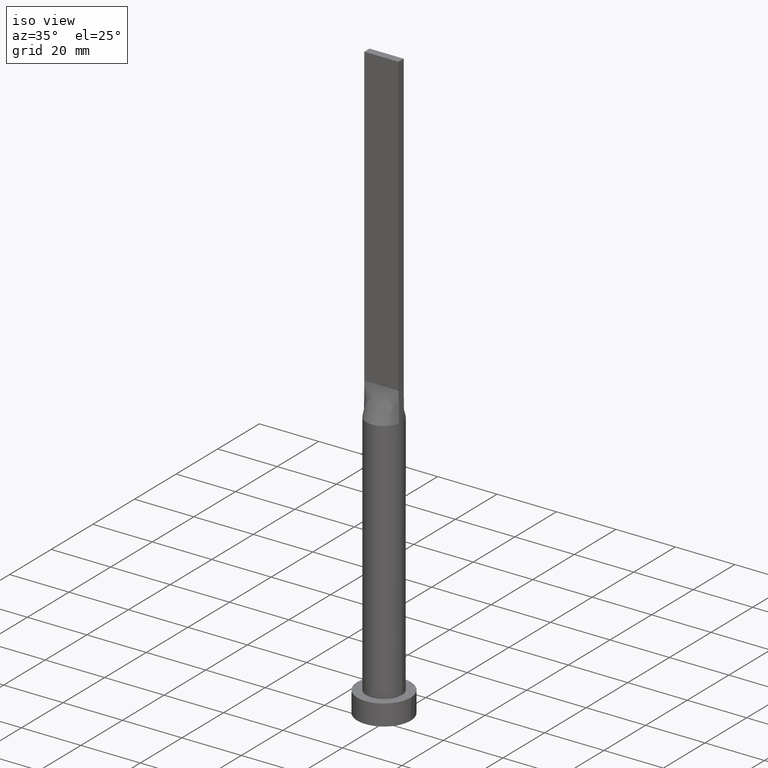
[diagram: clean part render]
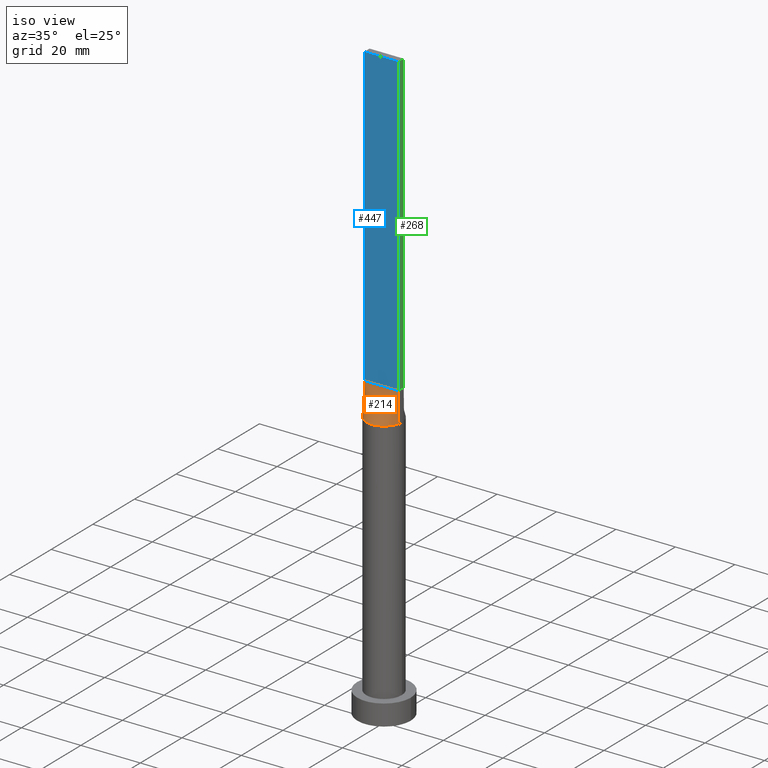
[diagram: same view with three faces highlighted in distinct colors, each labeled with its STEP entity id]
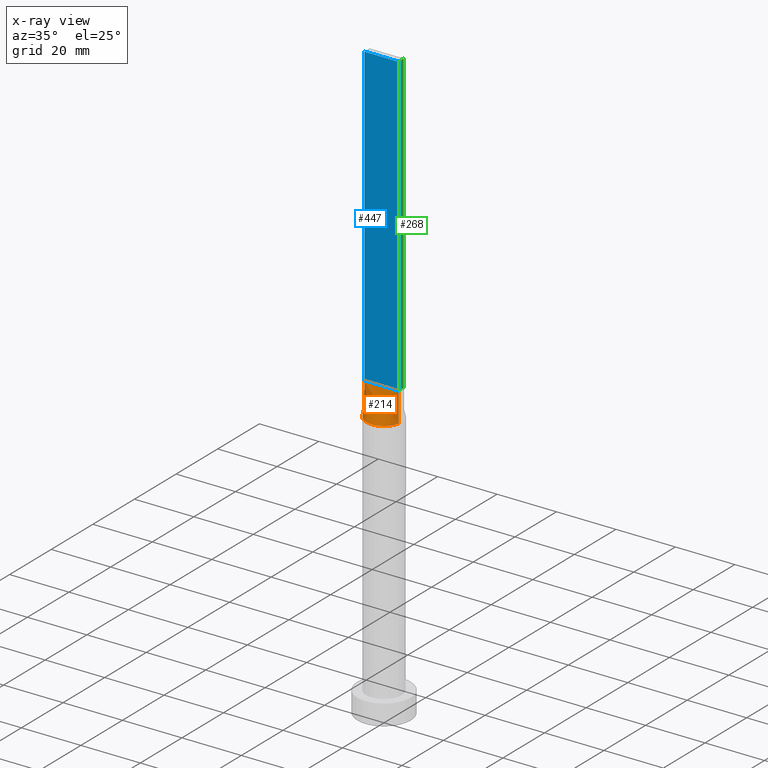
[diagram: x-ray of the same camera — body ghosted, the three highlighted faces saturated]
A machine part, iso view with three faces highlighted in distinct colors.
The next image is the same camera in x-ray (body ghosted, the three faces saturated) — at least one of them is partly hidden behind the body in this view.
Their STEP definitions:

[orange] entity #214 — the highlighted face is a freeform B-spline surface patch.
#3 = CARTESIAN_POINT ( 'NONE',  ( -5.759267569818394605, -1.752014689090954480, 90.00000000000004263 ) ) ;
#4 = CARTESIAN_POINT ( 'NONE',  ( 5.750000000000000000, -1.249999999999999778, 100.0000000000000000 ) ) ;
#10 = CARTESIAN_POINT ( 'NONE',  ( -0.9583333333333269310, -1.249999999999999334, 100.0000000000000000 ) ) ;
#15 = CARTESIAN_POINT ( 'NONE',  ( 3.037647739454303331, -5.231880992812857123, 90.00000000000007105 ) ) ;
#34 = CARTESIAN_POINT ( 'NONE',  ( -1.197916666666660079, -1.249999999999999334, 100.0000000000000000 ) ) ;
#40 = CARTESIAN_POINT ( 'NONE',  ( -3.660567483996338911, -4.804269179125217448, 90.00000000000002842 ) ) ;
#62 = CARTESIAN_POINT ( 'NONE',  ( 0.9583333333333390325, -1.249999999999999556, 100.0000000000000000 ) ) ;
#63 = VERTEX_POINT ( 'NONE', #352 ) ;
#78 = LINE ( 'NONE', #224, #327 ) ;
#93 = CIRCLE ( 'NONE', #442, 6.000000000000000888 ) ;
#95 = CARTESIAN_POINT ( 'NONE',  ( -1.966519853258819506, -5.681792876789066860, 90.00000000000004263 ) ) ;
#98 = VERTEX_POINT ( 'NONE', #354 ) ;
#99 = B_SPLINE_SURFACE_WITH_KNOTS ( 'NONE', 3, 1, ( 
 ( #371, #229 ),
 ( #3, #220 ),
 ( #184, #407 ),
 ( #596, #363 ),
 ( #555, #131 ),
 ( #40, #365 ),
 ( #135, #324 ),
 ( #95, #34 ),
 ( #550, #10 ),
 ( #287, #380 ),
 ( #432, #512 ),
 ( #195, #232 ),
 ( #142, #342 ),
 ( #388, #62 ),
 ( #332, #383 ),
 ( #15, #377 ),
 ( #472, #234 ),
 ( #526, #199 ),
 ( #336, #567 ),
 ( #561, #328 ),
 ( #149, #570 ),
 ( #152, #4 ) ),
 .UNSPECIFIED., .F., .F., .F.,
 ( 4, 2, 2, 2, 2, 2, 2, 2, 2, 2, 4 ),
 ( 2, 2 ),
 ( 0.000000000000000000, 0.1250000000000000278, 0.2500000000000000555, 0.3750000000000001110, 0.4375000000000000555, 0.5000000000000000000, 0.5625000000000000000, 0.6250000000000000000, 0.7499999999999998890, 0.8750000000000000000, 1.000000000000000000 ),
 ( 0.000000000000000000, 1.000000000000000000 ),
 .UNSPECIFIED. ) ;
#131 = CARTESIAN_POINT ( 'NONE',  ( -3.354166666666663410, -1.249999999999999112, 100.0000000000000000 ) ) ;
#134 = LINE ( 'NONE', #409, #385 ) ;
#135 = CARTESIAN_POINT ( 'NONE',  ( -3.037647739454305551, -5.231880992812856235, 90.00000000000002842 ) ) ;
#138 = CARTESIAN_POINT ( 'NONE',  ( 5.750000000000000000, -1.249999999999999778, 100.0000000000000000 ) ) ;
#142 = CARTESIAN_POINT ( 'NONE',  ( 0.8058840496048923496, -5.959001506938069070, 90.00000000000001421 ) ) ;
#149 = CARTESIAN_POINT ( 'NONE',  ( 5.759267569818393717, -1.752014689090956256, 90.00000000000002842 ) ) ;
#152 = CARTESIAN_POINT ( 'NONE',  ( 5.863058183536805856, -1.274577865986266101, 90.00000000000001421 ) ) ;
#184 = CARTESIAN_POINT ( 'NONE',  ( -5.586898165904734093, -2.266054396544145533, 90.00000000000002842 ) ) ;
#185 = EDGE_CURVE ( 'NONE', #98, #226, #134, .T. ) ;
#195 = CARTESIAN_POINT ( 'NONE',  ( 0.4029827085191214908, -6.000000000000000888, 90.00000000000002842 ) ) ;
#199 = CARTESIAN_POINT ( 'NONE',  ( 3.354166666666669183, -1.249999999999999778, 100.0000000000000284 ) ) ;
#200 = ORIENTED_EDGE ( 'NONE', *, *, #403, .F. ) ;
#214 = ADVANCED_FACE ( 'NONE', ( #506 ), #99, .T. ) ;
#220 = CARTESIAN_POINT ( 'NONE',  ( -5.270833333333333037, -1.249999999999999112, 100.0000000000000142 ) ) ;
#224 = CARTESIAN_POINT ( 'NONE',  ( -5.806529091768402928, -1.262288932993130386, 95.00000000000000000 ) ) ;
#226 = VERTEX_POINT ( 'NONE', #138 ) ;
#229 = CARTESIAN_POINT ( 'NONE',  ( -5.750000000000000000, -1.249999999999999112, 100.0000000000000000 ) ) ;
#232 = CARTESIAN_POINT ( 'NONE',  ( 0.2395833333333390325, -1.249999999999999556, 100.0000000000000142 ) ) ;
#234 = CARTESIAN_POINT ( 'NONE',  ( 2.395833333333337478, -1.249999999999999778, 100.0000000000000142 ) ) ;
#275 = EDGE_CURVE ( 'NONE', #516, #98, #93, .T. ) ;
#280 = DIRECTION ( 'NONE',  ( 0.000000000000000000, 0.000000000000000000, 1.000000000000000000 ) ) ;
#287 = CARTESIAN_POINT ( 'NONE',  ( -0.8058840496048947921, -5.959001506938068182, 90.00000000000005684 ) ) ;
#288 = ORIENTED_EDGE ( 'NONE', *, *, #467, .T. ) ;
#317 = CARTESIAN_POINT ( 'NONE',  ( -5.750000000000000000, -1.249999999999999112, 100.0000000000000000 ) ) ;
#324 = CARTESIAN_POINT ( 'NONE',  ( -1.916666666666660523, -1.249999999999999334, 100.0000000000000000 ) ) ;
#327 = VECTOR ( 'NONE', #411, 1000.000000000000114 ) ;
#328 = CARTESIAN_POINT ( 'NONE',  ( 4.791666666666667851, -1.249999999999999778, 100.0000000000000000 ) ) ;
#332 = CARTESIAN_POINT ( 'NONE',  ( 1.966519853258817729, -5.681792876789067748, 90.00000000000001421 ) ) ;
#336 = CARTESIAN_POINT ( 'NONE',  ( 5.038190104264874236, -3.311355329404293890, 90.00000000000002842 ) ) ;
#342 = CARTESIAN_POINT ( 'NONE',  ( 0.4791666666666724028, -1.249999999999999556, 100.0000000000000142 ) ) ;
#352 = CARTESIAN_POINT ( 'NONE',  ( -5.750000000000000000, -1.249999999999999112, 100.0000000000000000 ) ) ;
#354 = CARTESIAN_POINT ( 'NONE',  ( 5.863058287509796074, -1.274577880478293901, 90.00000000000001421 ) ) ;
#363 = CARTESIAN_POINT ( 'NONE',  ( -3.833333333333330817, -1.249999999999999112, 100.0000000000000142 ) ) ;
#365 = CARTESIAN_POINT ( 'NONE',  ( -2.395833333333328152, -1.249999999999999112, 100.0000000000000000 ) ) ;
#371 = CARTESIAN_POINT ( 'NONE',  ( -5.863058183536806744, -1.274577865986261438, 90.00000000000001421 ) ) ;
#374 = CARTESIAN_POINT ( 'NONE',  ( 0.000000000000000000, 0.000000000000000000, 90.00000000000001421 ) ) ;
#377 = CARTESIAN_POINT ( 'NONE',  ( 1.916666666666671626, -1.249999999999999778, 100.0000000000000142 ) ) ;
#380 = CARTESIAN_POINT ( 'NONE',  ( -0.4791666666666606345, -1.249999999999999334, 100.0000000000000000 ) ) ;
#383 = CARTESIAN_POINT ( 'NONE',  ( 1.197916666666672292, -1.249999999999999778, 100.0000000000000142 ) ) ;
#385 = VECTOR ( 'NONE', #457, 1000.000000000000114 ) ;
#388 = CARTESIAN_POINT ( 'NONE',  ( 1.587717880441006368, -5.799853445840308375, 90.00000000000001421 ) ) ;
#403 = EDGE_CURVE ( 'NONE', #63, #226, #452, .T. ) ;
#407 = CARTESIAN_POINT ( 'NONE',  ( -4.791666666666666075, -1.249999999999999112, 100.0000000000000142 ) ) ;
#409 = CARTESIAN_POINT ( 'NONE',  ( 5.806529091768402928, -1.262288932993132828, 95.00000000000000000 ) ) ;
#411 = DIRECTION ( 'NONE',  ( -0.01130506171853812650, -0.002457622112725682973, -0.9999330755971076456 ) ) ;
#427 = ORIENTED_EDGE ( 'NONE', *, *, #185, .T. ) ;
#429 = DIRECTION ( 'NONE',  ( 1.000000000000000000, 0.000000000000000000, 0.000000000000000000 ) ) ;
#430 = ORIENTED_EDGE ( 'NONE', *, *, #275, .T. ) ;
#432 = CARTESIAN_POINT ( 'NONE',  ( -0.4029827085191233227, -6.000000000000000000, 90.00000000000004263 ) ) ;
#442 = AXIS2_PLACEMENT_3D ( 'NONE', #374, #280, #429 ) ;
#452 = LINE ( 'NONE', #317, #531 ) ;
#457 = DIRECTION ( 'NONE',  ( -0.01130506171853803803, 0.002457622112726073286, 0.9999330755971076456 ) ) ;
#458 = DIRECTION ( 'NONE',  ( 1.000000000000000000, -5.656706986880892860E-17, 0.000000000000000000 ) ) ;
#467 = EDGE_CURVE ( 'NONE', #63, #516, #78, .T. ) ;
#472 = CARTESIAN_POINT ( 'NONE',  ( 3.660567483996338023, -4.804269179125219225, 90.00000000000005684 ) ) ;
#506 = FACE_OUTER_BOUND ( 'NONE', #588, .T. ) ;
#512 = CARTESIAN_POINT ( 'NONE',  ( -0.2395833333333274584, -1.249999999999999556, 100.0000000000000142 ) ) ;
#516 = VERTEX_POINT ( 'NONE', #590 ) ;
#526 = CARTESIAN_POINT ( 'NONE',  ( 4.659826596530312948, -3.842755878357678512, 90.00000000000001421 ) ) ;
#531 = VECTOR ( 'NONE', #458, 1000.000000000000000 ) ;
#550 = CARTESIAN_POINT ( 'NONE',  ( -1.587717880441008589, -5.799853445840304822, 90.00000000000001421 ) ) ;
#555 = CARTESIAN_POINT ( 'NONE',  ( -4.659826596530313836, -3.842755878357677179, 90.00000000000002842 ) ) ;
#561 = CARTESIAN_POINT ( 'NONE',  ( 5.586898165904734093, -2.266054396544146865, 90.00000000000004263 ) ) ;
#567 = CARTESIAN_POINT ( 'NONE',  ( 3.833333333333336146, -1.249999999999999778, 100.0000000000000284 ) ) ;
#570 = CARTESIAN_POINT ( 'NONE',  ( 5.270833333333333925, -1.249999999999999778, 100.0000000000000000 ) ) ;
#588 = EDGE_LOOP ( 'NONE', ( #430, #427, #200, #288 ) ) ;
#590 = CARTESIAN_POINT ( 'NONE',  ( -5.863065408737084816, -1.274579424051652365, 90.00000000000001421 ) ) ;
#596 = CARTESIAN_POINT ( 'NONE',  ( -5.038190104264876013, -3.311355329404291670, 90.00000000000005684 ) ) ;

[blue] entity #447 — the highlighted planar face has unit normal (0, 1, -0).
#41 = DIRECTION ( 'NONE',  ( -1.000000000000000000, 5.656706986880892860E-17, 0.000000000000000000 ) ) ;
#52 = VERTEX_POINT ( 'NONE', #575 ) ;
#63 = VERTEX_POINT ( 'NONE', #352 ) ;
#64 = EDGE_CURVE ( 'NONE', #52, #527, #213, .T. ) ;
#86 = EDGE_CURVE ( 'NONE', #52, #63, #299, .T. ) ;
#122 = ORIENTED_EDGE ( 'NONE', *, *, #403, .T. ) ;
#123 = CARTESIAN_POINT ( 'NONE',  ( -5.750000000000000000, -1.249999999999999112, 200.0000000000000000 ) ) ;
#133 = CARTESIAN_POINT ( 'NONE',  ( 5.750000000000000000, -1.249999999999999778, 200.0000000000000000 ) ) ;
#138 = CARTESIAN_POINT ( 'NONE',  ( 5.750000000000000000, -1.249999999999999778, 100.0000000000000000 ) ) ;
#183 = DIRECTION ( 'NONE',  ( 5.656706986880892860E-17, 1.000000000000000000, -0.000000000000000000 ) ) ;
#213 = LINE ( 'NONE', #393, #500 ) ;
#217 = FACE_OUTER_BOUND ( 'NONE', #235, .T. ) ;
#226 = VERTEX_POINT ( 'NONE', #138 ) ;
#235 = EDGE_LOOP ( 'NONE', ( #122, #473, #333, #344 ) ) ;
#299 = LINE ( 'NONE', #123, #578 ) ;
#311 = LINE ( 'NONE', #133, #366 ) ;
#317 = CARTESIAN_POINT ( 'NONE',  ( -5.750000000000000000, -1.249999999999999112, 100.0000000000000000 ) ) ;
#333 = ORIENTED_EDGE ( 'NONE', *, *, #64, .F. ) ;
#344 = ORIENTED_EDGE ( 'NONE', *, *, #86, .T. ) ;
#352 = CARTESIAN_POINT ( 'NONE',  ( -5.750000000000000000, -1.249999999999999112, 100.0000000000000000 ) ) ;
#366 = VECTOR ( 'NONE', #503, 1000.000000000000000 ) ;
#393 = CARTESIAN_POINT ( 'NONE',  ( -5.750000000000000000, -1.249999999999999112, 200.0000000000000000 ) ) ;
#401 = DIRECTION ( 'NONE',  ( -0.000000000000000000, -0.000000000000000000, -1.000000000000000000 ) ) ;
#403 = EDGE_CURVE ( 'NONE', #63, #226, #452, .T. ) ;
#447 = ADVANCED_FACE ( 'NONE', ( #217 ), #497, .F. ) ;
#452 = LINE ( 'NONE', #317, #531 ) ;
#458 = DIRECTION ( 'NONE',  ( 1.000000000000000000, -5.656706986880892860E-17, 0.000000000000000000 ) ) ;
#473 = ORIENTED_EDGE ( 'NONE', *, *, #509, .F. ) ;
#491 = AXIS2_PLACEMENT_3D ( 'NONE', #495, #183, #41 ) ;
#495 = CARTESIAN_POINT ( 'NONE',  ( -5.750000000000000000, -1.249999999999999112, 200.0000000000000000 ) ) ;
#497 = PLANE ( 'NONE',  #491 ) ;
#499 = CARTESIAN_POINT ( 'NONE',  ( 5.750000000000000000, -1.249999999999999778, 200.0000000000000000 ) ) ;
#500 = VECTOR ( 'NONE', #584, 1000.000000000000000 ) ;
#503 = DIRECTION ( 'NONE',  ( -0.000000000000000000, -0.000000000000000000, -1.000000000000000000 ) ) ;
#509 = EDGE_CURVE ( 'NONE', #527, #226, #311, .T. ) ;
#527 = VERTEX_POINT ( 'NONE', #499 ) ;
#531 = VECTOR ( 'NONE', #458, 1000.000000000000000 ) ;
#575 = CARTESIAN_POINT ( 'NONE',  ( -5.750000000000000000, -1.249999999999999112, 200.0000000000000000 ) ) ;
#578 = VECTOR ( 'NONE', #401, 1000.000000000000000 ) ;
#584 = DIRECTION ( 'NONE',  ( 1.000000000000000000, -5.656706986880892860E-17, 0.000000000000000000 ) ) ;

[green] entity #268 — the highlighted planar face has unit normal (-1, 0, 0).
#14 = ORIENTED_EDGE ( 'NONE', *, *, #509, .T. ) ;
#48 = CARTESIAN_POINT ( 'NONE',  ( 5.750000000000000000, -1.249999999999999778, 200.0000000000000000 ) ) ;
#55 = PLANE ( 'NONE',  #357 ) ;
#69 = EDGE_LOOP ( 'NONE', ( #341, #153, #402, #14 ) ) ;
#84 = LINE ( 'NONE', #89, #523 ) ;
#89 = CARTESIAN_POINT ( 'NONE',  ( 5.750000000000000000, 1.250000000000000222, 100.0000000000000000 ) ) ;
#104 = CARTESIAN_POINT ( 'NONE',  ( 5.750000000000000000, 1.250000000000000222, 100.0000000000000000 ) ) ;
#130 = CARTESIAN_POINT ( 'NONE',  ( 5.750000000000000000, 1.250000000000000222, 200.0000000000000000 ) ) ;
#133 = CARTESIAN_POINT ( 'NONE',  ( 5.750000000000000000, -1.249999999999999778, 200.0000000000000000 ) ) ;
#138 = CARTESIAN_POINT ( 'NONE',  ( 5.750000000000000000, -1.249999999999999778, 100.0000000000000000 ) ) ;
#153 = ORIENTED_EDGE ( 'NONE', *, *, #477, .F. ) ;
#180 = DIRECTION ( 'NONE',  ( -0.000000000000000000, -0.000000000000000000, -1.000000000000000000 ) ) ;
#192 = DIRECTION ( 'NONE',  ( 0.000000000000000000, 1.000000000000000000, 0.000000000000000000 ) ) ;
#202 = CARTESIAN_POINT ( 'NONE',  ( 5.750000000000000000, -1.249999999999999778, 200.0000000000000000 ) ) ;
#203 = VECTOR ( 'NONE', #180, 1000.000000000000000 ) ;
#226 = VERTEX_POINT ( 'NONE', #138 ) ;
#240 = VERTEX_POINT ( 'NONE', #104 ) ;
#242 = DIRECTION ( 'NONE',  ( 0.000000000000000000, 0.000000000000000000, 1.000000000000000000 ) ) ;
#268 = ADVANCED_FACE ( 'NONE', ( #476 ), #55, .F. ) ;
#311 = LINE ( 'NONE', #133, #366 ) ;
#313 = EDGE_CURVE ( 'NONE', #527, #601, #469, .T. ) ;
#314 = DIRECTION ( 'NONE',  ( -0.000000000000000000, 1.000000000000000000, -0.000000000000000000 ) ) ;
#341 = ORIENTED_EDGE ( 'NONE', *, *, #563, .T. ) ;
#357 = AXIS2_PLACEMENT_3D ( 'NONE', #202, #480, #242 ) ;
#366 = VECTOR ( 'NONE', #503, 1000.000000000000000 ) ;
#402 = ORIENTED_EDGE ( 'NONE', *, *, #313, .F. ) ;
#434 = VECTOR ( 'NONE', #192, 1000.000000000000000 ) ;
#469 = LINE ( 'NONE', #48, #434 ) ;
#476 = FACE_OUTER_BOUND ( 'NONE', #69, .T. ) ;
#477 = EDGE_CURVE ( 'NONE', #601, #240, #597, .T. ) ;
#480 = DIRECTION ( 'NONE',  ( -1.000000000000000000, 0.000000000000000000, 0.000000000000000000 ) ) ;
#499 = CARTESIAN_POINT ( 'NONE',  ( 5.750000000000000000, -1.249999999999999778, 200.0000000000000000 ) ) ;
#503 = DIRECTION ( 'NONE',  ( -0.000000000000000000, -0.000000000000000000, -1.000000000000000000 ) ) ;
#509 = EDGE_CURVE ( 'NONE', #527, #226, #311, .T. ) ;
#523 = VECTOR ( 'NONE', #314, 1000.000000000000000 ) ;
#527 = VERTEX_POINT ( 'NONE', #499 ) ;
#544 = CARTESIAN_POINT ( 'NONE',  ( 5.750000000000000000, 1.250000000000000222, 200.0000000000000000 ) ) ;
#563 = EDGE_CURVE ( 'NONE', #226, #240, #84, .T. ) ;
#597 = LINE ( 'NONE', #544, #203 ) ;
#601 = VERTEX_POINT ( 'NONE', #130 ) ;